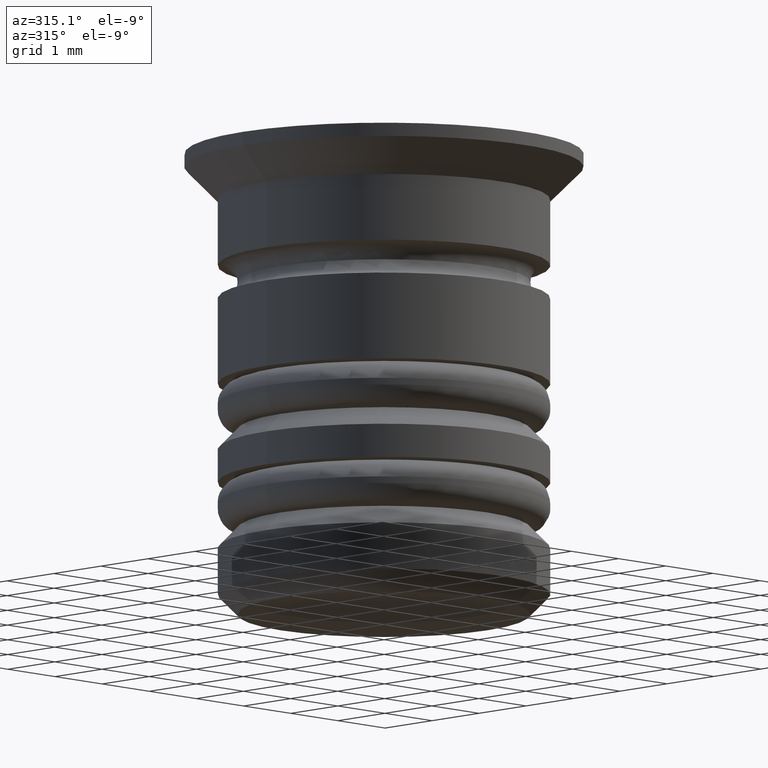
[diagram: clean part render]
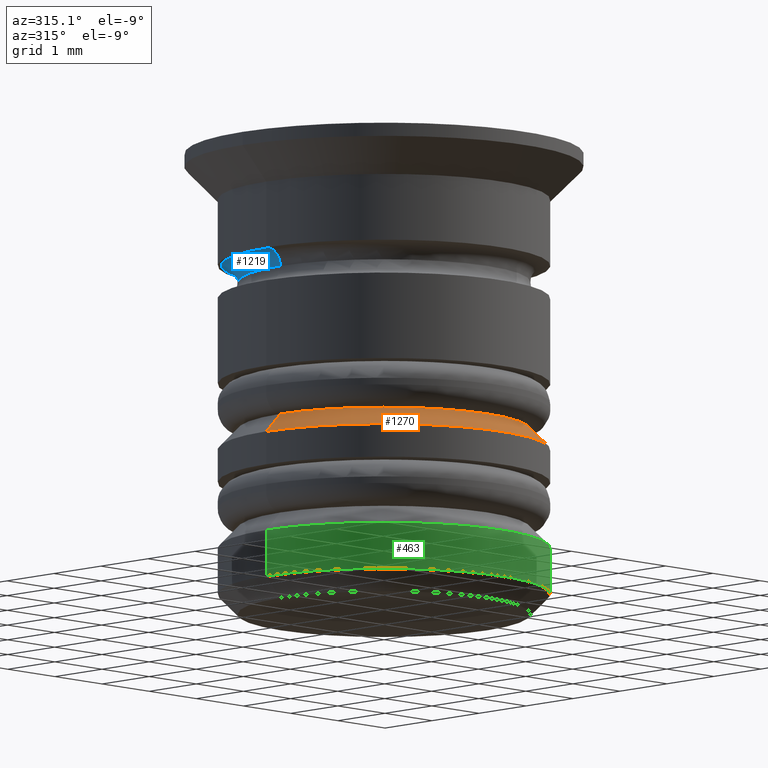
[diagram: same view with three faces highlighted in distinct colors, each labeled with its STEP entity id]
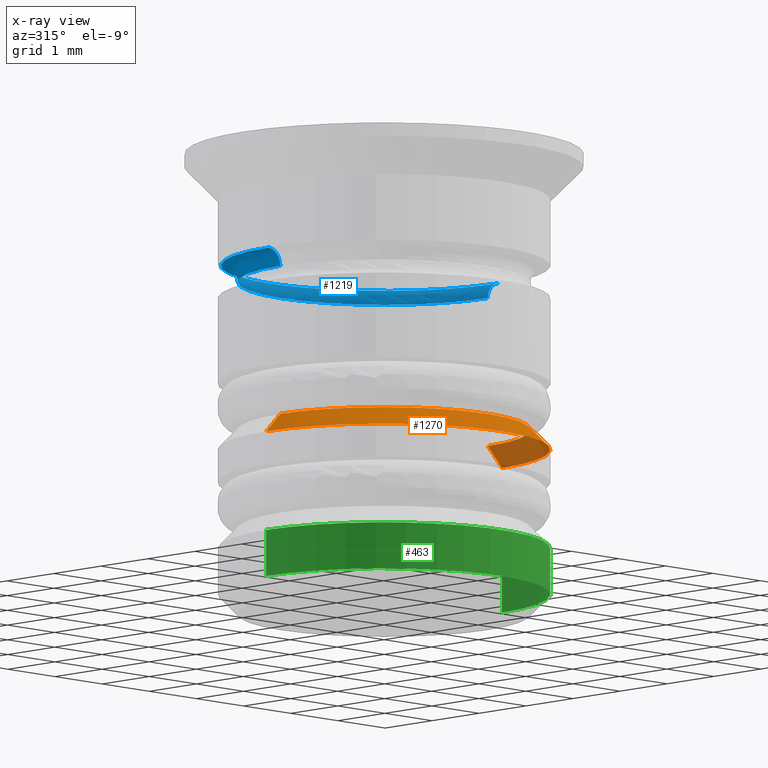
[diagram: x-ray of the same camera — body ghosted, the three highlighted faces saturated]
A machine part, auxiliary view with three faces highlighted in distinct colors.
The next image is the same camera in x-ray (body ghosted, the three faces saturated) — at least one of them is partly hidden behind the body in this view.
Their STEP definitions:

[orange] entity #1270 — the highlighted conical surface has half-angle 45 deg.
#90 = DIRECTION ( 'NONE',  ( -0.000000000000000000, -0.000000000000000000, 1.000000000000000000 ) ) ;
#111 = EDGE_CURVE ( 'NONE', #160, #321, #158, .T. ) ;
#132 = ORIENTED_EDGE ( 'NONE', *, *, #111, .F. ) ;
#155 = DIRECTION ( 'NONE',  ( -1.000000000000000000, 0.000000000000000000, 0.000000000000000000 ) ) ;
#158 = CIRCLE ( 'NONE', #803, 2.200000000000002398 ) ;
#160 = VERTEX_POINT ( 'NONE', #354 ) ;
#198 = DIRECTION ( 'NONE',  ( 0.000000000000000000, 0.000000000000000000, -1.000000000000000000 ) ) ;
#213 = EDGE_CURVE ( 'NONE', #321, #432, #825, .T. ) ;
#249 = ORIENTED_EDGE ( 'NONE', *, *, #1597, .T. ) ;
#305 = EDGE_CURVE ( 'NONE', #432, #412, #339, .T. ) ;
#311 = ORIENTED_EDGE ( 'NONE', *, *, #213, .F. ) ;
#321 = VERTEX_POINT ( 'NONE', #860 ) ;
#339 = CIRCLE ( 'NONE', #1274, 2.500000000000001332 ) ;
#354 = CARTESIAN_POINT ( 'NONE',  ( -2.200000000000002398, 2.694222958124179965E-16, -4.200000000000010836 ) ) ;
#412 = VERTEX_POINT ( 'NONE', #1293 ) ;
#432 = VERTEX_POINT ( 'NONE', #1195 ) ;
#465 = DIRECTION ( 'NONE',  ( 0.7071067811865507924, 8.659560562354974766E-17, -0.7071067811865441310 ) ) ;
#704 = ORIENTED_EDGE ( 'NONE', *, *, #305, .F. ) ;
#800 = DIRECTION ( 'NONE',  ( -1.000000000000000000, 0.000000000000000000, 0.000000000000000000 ) ) ;
#803 = AXIS2_PLACEMENT_3D ( 'NONE', #1618, #90, #800 ) ;
#825 = LINE ( 'NONE', #1136, #870 ) ;
#860 = CARTESIAN_POINT ( 'NONE',  ( 2.200000000000002398, 0.000000000000000000, -4.200000000000010836 ) ) ;
#863 = EDGE_LOOP ( 'NONE', ( #311, #132, #249, #704 ) ) ;
#870 = VECTOR ( 'NONE', #465, 1000.000000000000000 ) ;
#879 = AXIS2_PLACEMENT_3D ( 'NONE', #1178, #198, #1323 ) ;
#1012 = DIRECTION ( 'NONE',  ( -0.7071067811865507924, 0.000000000000000000, -0.7071067811865441310 ) ) ;
#1136 = CARTESIAN_POINT ( 'NONE',  ( 1.999999999999992673, 2.449293598294697540E-16, -4.000000000000003553 ) ) ;
#1163 = DIRECTION ( 'NONE',  ( 0.000000000000000000, 0.000000000000000000, -1.000000000000000000 ) ) ;
#1178 = CARTESIAN_POINT ( 'NONE',  ( 0.000000000000000000, 0.000000000000000000, -4.000000000000003553 ) ) ;
#1195 = CARTESIAN_POINT ( 'NONE',  ( 2.500000000000001332, 0.000000000000000000, -4.500000000000007105 ) ) ;
#1270 = ADVANCED_FACE ( 'NONE', ( #1453 ), #1671, .T. ) ;
#1274 = AXIS2_PLACEMENT_3D ( 'NONE', #1289, #1163, #155 ) ;
#1289 = CARTESIAN_POINT ( 'NONE',  ( 0.000000000000000000, 0.000000000000000000, -4.500000000000007105 ) ) ;
#1293 = CARTESIAN_POINT ( 'NONE',  ( -2.500000000000001332, 3.061616997868385113E-16, -4.500000000000007105 ) ) ;
#1323 = DIRECTION ( 'NONE',  ( -1.000000000000000000, 0.000000000000000000, 0.000000000000000000 ) ) ;
#1453 = FACE_OUTER_BOUND ( 'NONE', #863, .T. ) ;
#1597 = EDGE_CURVE ( 'NONE', #160, #412, #1725, .T. ) ;
#1618 = CARTESIAN_POINT ( 'NONE',  ( 0.000000000000000000, 0.000000000000000000, -4.200000000000010836 ) ) ;
#1671 = CONICAL_SURFACE ( 'NONE', #879, 1.999999999999992673, 0.7853981633974530530 ) ;
#1725 = LINE ( 'NONE', #1743, #1788 ) ;
#1743 = CARTESIAN_POINT ( 'NONE',  ( -1.999999999999992673, 0.000000000000000000, -4.000000000000003553 ) ) ;
#1788 = VECTOR ( 'NONE', #1012, 1000.000000000000000 ) ;

[blue] entity #1219 — the highlighted toroidal blend (fillet) surface has major radius 2.45 mm and minor (blend) radius 0.25 mm.
#11 = ORIENTED_EDGE ( 'NONE', *, *, #572, .T. ) ;
#17 = EDGE_CURVE ( 'NONE', #1714, #47, #507, .T. ) ;
#47 = VERTEX_POINT ( 'NONE', #1587 ) ;
#75 = ORIENTED_EDGE ( 'NONE', *, *, #17, .F. ) ;
#76 = CARTESIAN_POINT ( 'NONE',  ( -2.450000000000001510, 3.000384657911017342E-16, -1.700000000000000178 ) ) ;
#163 = CIRCLE ( 'NONE', #1220, 0.2500000000000002220 ) ;
#172 = FACE_OUTER_BOUND ( 'NONE', #984, .T. ) ;
#192 = DIRECTION ( 'NONE',  ( 1.224646799147353207E-16, 1.000000000000000000, 0.000000000000000000 ) ) ;
#237 = DIRECTION ( 'NONE',  ( 1.000000000000000000, 0.000000000000000000, 0.000000000000000000 ) ) ;
#346 = AXIS2_PLACEMENT_3D ( 'NONE', #1633, #936, #498 ) ;
#425 = EDGE_CURVE ( 'NONE', #1785, #47, #899, .T. ) ;
#498 = DIRECTION ( 'NONE',  ( 1.000000000000000000, 0.000000000000000000, 0.000000000000000000 ) ) ;
#500 = CARTESIAN_POINT ( 'NONE',  ( 0.000000000000000000, 0.000000000000000000, -1.950000000000000400 ) ) ;
#507 = CIRCLE ( 'NONE', #1476, 0.2500000000000002220 ) ;
#511 = EDGE_CURVE ( 'NONE', #616, #1714, #1829, .T. ) ;
#564 = CARTESIAN_POINT ( 'NONE',  ( 2.200000000000001510, 0.000000000000000000, -1.950000000000000400 ) ) ;
#572 = EDGE_CURVE ( 'NONE', #616, #1785, #163, .T. ) ;
#606 = DIRECTION ( 'NONE',  ( 1.000000000000000000, 0.000000000000000000, 0.000000000000000000 ) ) ;
#616 = VERTEX_POINT ( 'NONE', #1770 ) ;
#676 = DIRECTION ( 'NONE',  ( -0.000000000000000000, -0.000000000000000000, 1.000000000000000000 ) ) ;
#712 = ORIENTED_EDGE ( 'NONE', *, *, #425, .T. ) ;
#730 = CARTESIAN_POINT ( 'NONE',  ( -2.450000000000001510, 3.000384657911017342E-16, -1.950000000000000400 ) ) ;
#771 = DIRECTION ( 'NONE',  ( -0.000000000000000000, -0.000000000000000000, 1.000000000000000000 ) ) ;
#899 = CIRCLE ( 'NONE', #1164, 2.200000000000001510 ) ;
#936 = DIRECTION ( 'NONE',  ( -0.000000000000000000, -0.000000000000000000, 1.000000000000000000 ) ) ;
#984 = EDGE_LOOP ( 'NONE', ( #11, #712, #75, #1552 ) ) ;
#1010 = DIRECTION ( 'NONE',  ( -1.000000000000000000, 1.224646799147353454E-16, 0.000000000000000000 ) ) ;
#1102 = DIRECTION ( 'NONE',  ( 0.000000000000000000, -1.000000000000000000, 0.000000000000000000 ) ) ;
#1142 = TOROIDAL_SURFACE ( 'NONE', #346, 2.450000000000001510, 0.2500000000000002220 ) ;
#1164 = AXIS2_PLACEMENT_3D ( 'NONE', #500, #771, #606 ) ;
#1182 = AXIS2_PLACEMENT_3D ( 'NONE', #1500, #676, #237 ) ;
#1219 = ADVANCED_FACE ( 'NONE', ( #172 ), #1142, .F. ) ;
#1220 = AXIS2_PLACEMENT_3D ( 'NONE', #1482, #1102, #1782 ) ;
#1476 = AXIS2_PLACEMENT_3D ( 'NONE', #730, #192, #1010 ) ;
#1482 = CARTESIAN_POINT ( 'NONE',  ( 2.450000000000001510, 0.000000000000000000, -1.950000000000000400 ) ) ;
#1500 = CARTESIAN_POINT ( 'NONE',  ( 0.000000000000000000, 0.000000000000000000, -1.700000000000000178 ) ) ;
#1552 = ORIENTED_EDGE ( 'NONE', *, *, #511, .F. ) ;
#1587 = CARTESIAN_POINT ( 'NONE',  ( -2.200000000000001510, 2.694222958124178979E-16, -1.950000000000000400 ) ) ;
#1633 = CARTESIAN_POINT ( 'NONE',  ( 0.000000000000000000, 0.000000000000000000, -1.950000000000000400 ) ) ;
#1714 = VERTEX_POINT ( 'NONE', #76 ) ;
#1770 = CARTESIAN_POINT ( 'NONE',  ( 2.450000000000001510, 0.000000000000000000, -1.700000000000000178 ) ) ;
#1782 = DIRECTION ( 'NONE',  ( 0.000000000000000000, 0.000000000000000000, -1.000000000000000000 ) ) ;
#1785 = VERTEX_POINT ( 'NONE', #564 ) ;
#1829 = CIRCLE ( 'NONE', #1182, 2.450000000000001510 ) ;

[green] entity #463 — the highlighted cylindrical surface (partial cylindrical patch) has radius 2.5 mm, axis along (-0, -0, 1).
#13 = ORIENTED_EDGE ( 'NONE', *, *, #486, .F. ) ;
#16 = AXIS2_PLACEMENT_3D ( 'NONE', #574, #723, #1148 ) ;
#154 = EDGE_CURVE ( 'NONE', #742, #1504, #1507, .T. ) ;
#167 = CIRCLE ( 'NONE', #16, 2.500000000000001776 ) ;
#242 = CARTESIAN_POINT ( 'NONE',  ( -2.500000000000001776, 3.061616997868385606E-16, 0.000000000000000000 ) ) ;
#267 = VERTEX_POINT ( 'NONE', #1715 ) ;
#313 = EDGE_CURVE ( 'NONE', #267, #742, #686, .T. ) ;
#428 = AXIS2_PLACEMENT_3D ( 'NONE', #1520, #1030, #999 ) ;
#463 = ADVANCED_FACE ( 'NONE', ( #1739 ), #1035, .T. ) ;
#482 = DIRECTION ( 'NONE',  ( 1.000000000000000000, 0.000000000000000000, 0.000000000000000000 ) ) ;
#486 = EDGE_CURVE ( 'NONE', #267, #1563, #1591, .T. ) ;
#574 = CARTESIAN_POINT ( 'NONE',  ( 0.000000000000000000, 0.000000000000000000, -6.000000000000007105 ) ) ;
#686 = CIRCLE ( 'NONE', #428, 2.500000000000001776 ) ;
#690 = CARTESIAN_POINT ( 'NONE',  ( 2.500000000000001776, 0.000000000000000000, -6.000000000000007105 ) ) ;
#723 = DIRECTION ( 'NONE',  ( 0.000000000000000000, 0.000000000000000000, -1.000000000000000000 ) ) ;
#742 = VERTEX_POINT ( 'NONE', #1141 ) ;
#894 = DIRECTION ( 'NONE',  ( -0.000000000000000000, -0.000000000000000000, 1.000000000000000000 ) ) ;
#985 = AXIS2_PLACEMENT_3D ( 'NONE', #1760, #894, #482 ) ;
#998 = ORIENTED_EDGE ( 'NONE', *, *, #154, .T. ) ;
#999 = DIRECTION ( 'NONE',  ( -1.000000000000000000, 0.000000000000000000, 0.000000000000000000 ) ) ;
#1000 = CARTESIAN_POINT ( 'NONE',  ( -2.500000000000001776, 3.061616997868385606E-16, -6.000000000000007105 ) ) ;
#1001 = EDGE_CURVE ( 'NONE', #1504, #1563, #167, .T. ) ;
#1030 = DIRECTION ( 'NONE',  ( -0.000000000000000000, -0.000000000000000000, 1.000000000000000000 ) ) ;
#1035 = CYLINDRICAL_SURFACE ( 'NONE', #985, 2.500000000000001776 ) ;
#1120 = VECTOR ( 'NONE', #1330, 1000.000000000000000 ) ;
#1141 = CARTESIAN_POINT ( 'NONE',  ( 2.500000000000001776, 0.000000000000000000, -6.699999999999999289 ) ) ;
#1148 = DIRECTION ( 'NONE',  ( -1.000000000000000000, 0.000000000000000000, 0.000000000000000000 ) ) ;
#1330 = DIRECTION ( 'NONE',  ( -0.000000000000000000, -0.000000000000000000, 1.000000000000000000 ) ) ;
#1367 = DIRECTION ( 'NONE',  ( -0.000000000000000000, -0.000000000000000000, 1.000000000000000000 ) ) ;
#1412 = EDGE_LOOP ( 'NONE', ( #13, #1681, #998, #1417 ) ) ;
#1417 = ORIENTED_EDGE ( 'NONE', *, *, #1001, .T. ) ;
#1504 = VERTEX_POINT ( 'NONE', #690 ) ;
#1507 = LINE ( 'NONE', #1794, #1572 ) ;
#1520 = CARTESIAN_POINT ( 'NONE',  ( 0.000000000000000000, 0.000000000000000000, -6.699999999999999289 ) ) ;
#1563 = VERTEX_POINT ( 'NONE', #1000 ) ;
#1572 = VECTOR ( 'NONE', #1367, 1000.000000000000000 ) ;
#1591 = LINE ( 'NONE', #242, #1120 ) ;
#1681 = ORIENTED_EDGE ( 'NONE', *, *, #313, .T. ) ;
#1715 = CARTESIAN_POINT ( 'NONE',  ( -2.500000000000001776, 3.061616997868385606E-16, -6.699999999999999289 ) ) ;
#1739 = FACE_OUTER_BOUND ( 'NONE', #1412, .T. ) ;
#1760 = CARTESIAN_POINT ( 'NONE',  ( 0.000000000000000000, 0.000000000000000000, 0.000000000000000000 ) ) ;
#1794 = CARTESIAN_POINT ( 'NONE',  ( 2.500000000000001776, 0.000000000000000000, 0.000000000000000000 ) ) ;